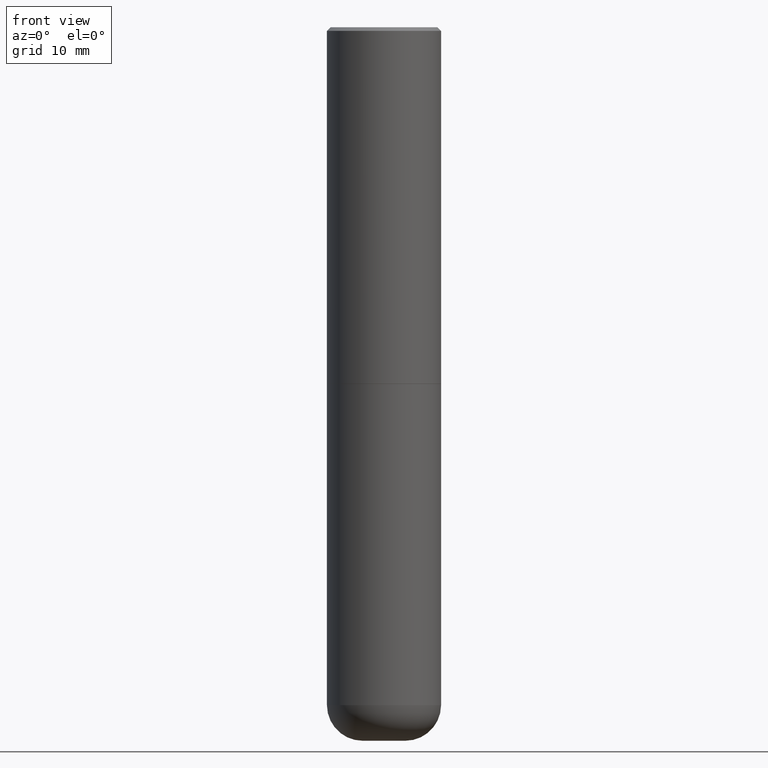
[diagram: clean part render]
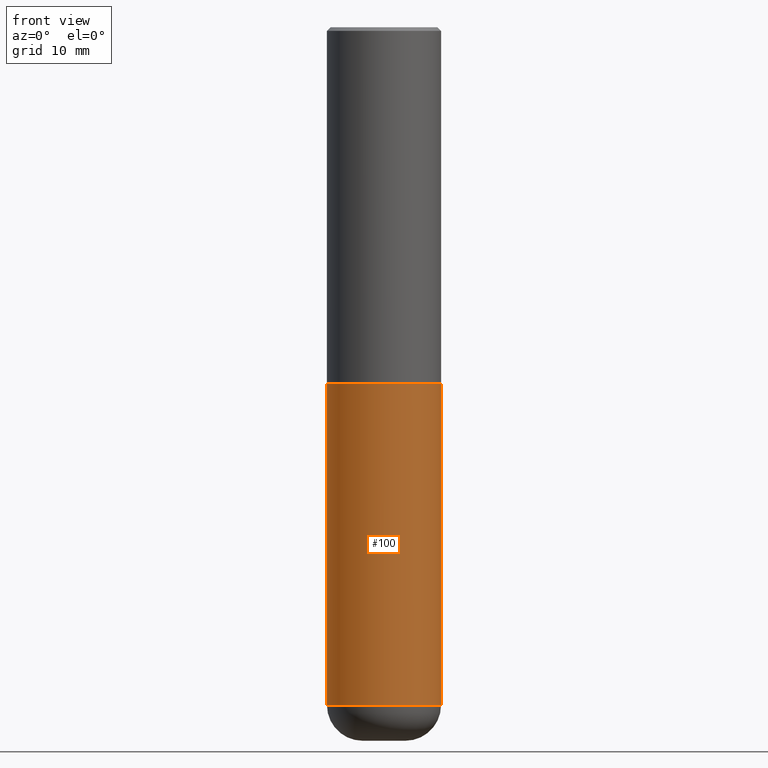
[diagram: same view with one face highlighted and labeled with its STEP entity id]
A machine part, front view. The second image highlights one B-rep face of the part: STEP entity #100.
In plain terms, the highlighted cylindrical surface (partial cylindrical patch) has radius 7.9997 mm, axis along (-0, 0, 1).
Its self-contained STEP definition (entity closure, byte-faithful):
#2 = ORIENTED_EDGE ( 'NONE', *, *, #5, .T. ) ;
#5 = EDGE_CURVE ( 'NONE', #242, #30, #359, .T. ) ;
#22 = DIRECTION ( 'NONE',  ( 1.000000000000000000, -6.982962677686269866E-15, 0.000000000000000000 ) ) ;
#25 = CARTESIAN_POINT ( 'NONE',  ( 9.146297882013029477E-29, -1.305848935540725085E-14, -3.740100000000000424 ) ) ;
#30 = VERTEX_POINT ( 'NONE', #365 ) ;
#33 = VERTEX_POINT ( 'NONE', #392 ) ;
#35 = CARTESIAN_POINT ( 'NONE',  ( 0.000000000000000000, 0.000000000000000000, 0.000000000000000000 ) ) ;
#36 = AXIS2_PLACEMENT_3D ( 'NONE', #25, #379, #183 ) ;
#52 = VECTOR ( 'NONE', #227, 39.37007874015748143 ) ;
#62 = EDGE_LOOP ( 'NONE', ( #191, #383, #2, #193 ) ) ;
#90 = VERTEX_POINT ( 'NONE', #271 ) ;
#100 = ADVANCED_FACE ( 'NONE', ( #364 ), #162, .T. ) ;
#108 = DIRECTION ( 'NONE',  ( -2.445468806185136597E-29, 3.491481338843145583E-15, 1.000000000000000000 ) ) ;
#111 = CIRCLE ( 'NONE', #323, 0.3149500000000000077 ) ;
#157 = VECTOR ( 'NONE', #165, 39.37007874015748143 ) ;
#162 = CYLINDRICAL_SURFACE ( 'NONE', #168, 0.3149500000000000077 ) ;
#165 = DIRECTION ( 'NONE',  ( -2.445468806185136877E-29, 3.491481338843145188E-15, 1.000000000000000000 ) ) ;
#168 = AXIS2_PLACEMENT_3D ( 'NONE', #35, #108, #237 ) ;
#182 = CARTESIAN_POINT ( 'NONE',  ( 4.813905344975442395E-29, -6.872981015512733285E-15, -1.968500000000000361 ) ) ;
#183 = DIRECTION ( 'NONE',  ( 1.000000000000000000, -6.982962677686263555E-15, 0.000000000000000000 ) ) ;
#191 = ORIENTED_EDGE ( 'NONE', *, *, #413, .F. ) ;
#193 = ORIENTED_EDGE ( 'NONE', *, *, #285, .F. ) ;
#223 = CARTESIAN_POINT ( 'NONE',  ( -0.3149500000000000077, 2.237854346276435590E-15, -1.549218606675782676E-29 ) ) ;
#227 = DIRECTION ( 'NONE',  ( -2.445468806185136877E-29, 3.491481338843145188E-15, 1.000000000000000000 ) ) ;
#237 = DIRECTION ( 'NONE',  ( 1.000000000000000000, -6.982962677686266711E-15, 4.876176775795936353E-29 ) ) ;
#241 = CIRCLE ( 'NONE', #36, 0.3149500000000000077 ) ;
#242 = VERTEX_POINT ( 'NONE', #375 ) ;
#271 = CARTESIAN_POINT ( 'NONE',  ( -0.3149500000000000077, -7.727880839183556085E-15, -1.968500000000000361 ) ) ;
#285 = EDGE_CURVE ( 'NONE', #90, #30, #111, .T. ) ;
#314 = DIRECTION ( 'NONE',  ( -2.445468806185136597E-29, 3.491481338843145583E-15, 1.000000000000000000 ) ) ;
#323 = AXIS2_PLACEMENT_3D ( 'NONE', #182, #314, #22 ) ;
#359 = LINE ( 'NONE', #369, #157 ) ;
#361 = EDGE_CURVE ( 'NONE', #33, #242, #241, .T. ) ;
#364 = FACE_OUTER_BOUND ( 'NONE', #62, .T. ) ;
#365 = CARTESIAN_POINT ( 'NONE',  ( 0.3149500000000000077, -9.072265110850023156E-15, -1.968500000000000361 ) ) ;
#369 = CARTESIAN_POINT ( 'NONE',  ( 0.3149500000000000077, -2.199284095337289871E-15, 1.535751875536930130E-29 ) ) ;
#375 = CARTESIAN_POINT ( 'NONE',  ( 0.3149499999999999522, -1.525777345074454073E-14, -3.740100000000000424 ) ) ;
#379 = DIRECTION ( 'NONE',  ( -2.445468806185136597E-29, 3.491481338843145583E-15, 1.000000000000000000 ) ) ;
#383 = ORIENTED_EDGE ( 'NONE', *, *, #361, .T. ) ;
#389 = LINE ( 'NONE', #223, #52 ) ;
#392 = CARTESIAN_POINT ( 'NONE',  ( -0.3149499999999999522, -1.082063500913081645E-14, -3.740100000000000424 ) ) ;
#413 = EDGE_CURVE ( 'NONE', #33, #90, #389, .T. ) ;